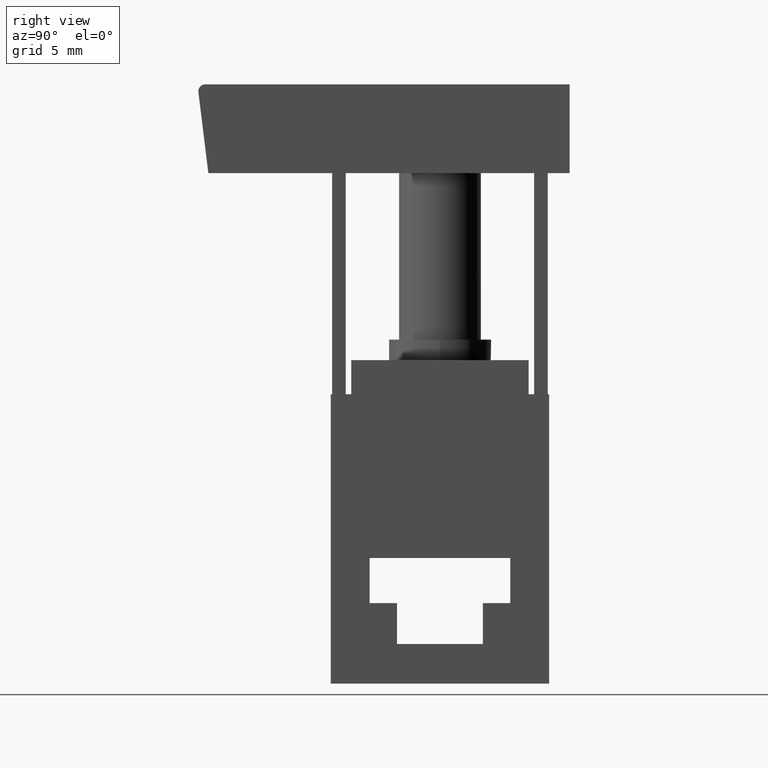
[diagram: clean part render]
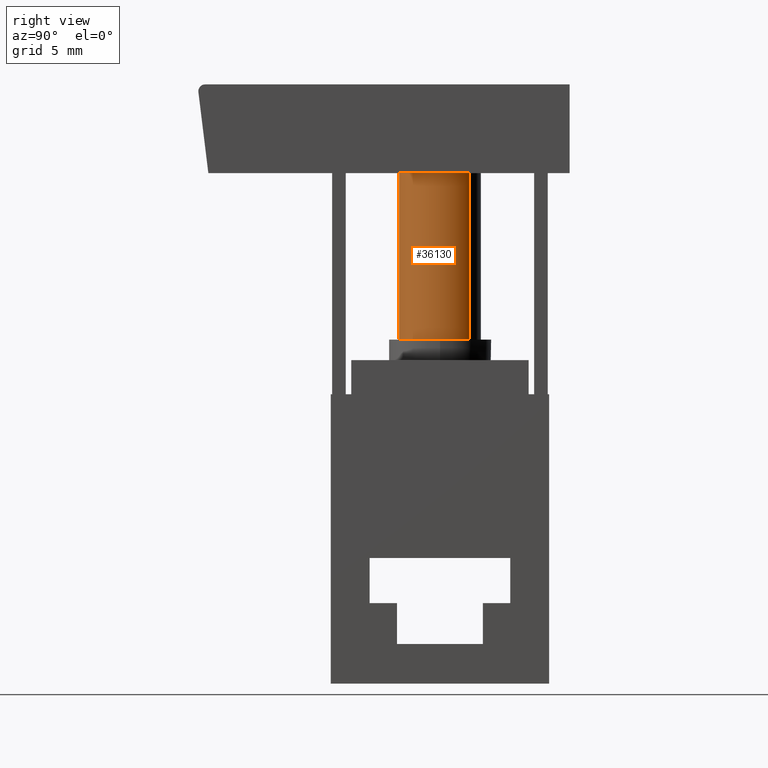
[diagram: same view with one face highlighted and labeled with its STEP entity id]
A machine part, right view. The second image highlights one B-rep face of the part: STEP entity #36130.
In plain terms, the highlighted cylindrical surface (partial cylindrical patch) has radius 3 mm, axis along (0, 0, 1).
Its self-contained STEP definition (entity closure, byte-faithful):
#7040=CARTESIAN_POINT('',(-26.7056108469937,12.2000000000001,
7.99999999999995));
#7050=DIRECTION('',(7.28920975411253E-15,1.,1.03648927375055E-28));
#7060=DIRECTION('',(-0.707106781186553,5.15424964662406E-15,
0.707106781186542));
#7070=AXIS2_PLACEMENT_3D('',#7040,#7050,#7060);
#7080=CIRCLE('',#7070,2.99999999999999);
#7090=CARTESIAN_POINT('',(-28.8269311905533,12.2000000000001,
10.1213203435596));
#7100=VERTEX_POINT('',#7090);
#7110=CARTESIAN_POINT('',(-24.584290503434,12.2000000000001,
5.87867965644033));
#7120=VERTEX_POINT('',#7110);
#7130=EDGE_CURVE('',#7100,#7120,#7080,.T.);
#25650=CARTESIAN_POINT('',(-24.5842905034341,-5.69999999999991,
5.87867965644033));
#25660=DIRECTION('',(7.28920975411253E-15,1.,1.03648927375055E-28));
#25670=VECTOR('',#25660,1.);
#25680=LINE('',#25650,#25670);
#25690=CARTESIAN_POINT('',(-24.584290503434,8.34887714518118E-14,
5.87867965644033));
#25700=VERTEX_POINT('',#25690);
#25710=EDGE_CURVE('',#25700,#7120,#25680,.T.);
#25740=CARTESIAN_POINT('',(-28.8269311905534,-5.69999999999988,
10.1213203435596));
#25750=DIRECTION('',(7.28920975411253E-15,1.,1.03648927375055E-28));
#25760=VECTOR('',#25750,1.);
#25770=LINE('',#25740,#25760);
#25780=CARTESIAN_POINT('',(-28.8269311905534,1.13686837721616E-13,
10.1213203435596));
#25790=VERTEX_POINT('',#25780);
#25800=EDGE_CURVE('',#25790,#7100,#25770,.T.);
#25820=CARTESIAN_POINT('',(-26.7056108469937,9.87395297478266E-14,
7.99999999999995));
#25830=DIRECTION('',(7.28920975411253E-15,1.,1.03648927375055E-28));
#25840=DIRECTION('',(-0.707106781186553,5.15424964662406E-15,
0.707106781186542));
#25850=AXIS2_PLACEMENT_3D('',#25820,#25830,#25840);
#25860=CIRCLE('',#25850,2.99999999999999);
#26040=EDGE_CURVE('',#25790,#25700,#25860,.T.);
#36020=CARTESIAN_POINT('',(-26.7056108469937,-5.6999999999999,
7.99999999999995));
#36030=DIRECTION('',(7.28920975411253E-15,1.,1.03648927375055E-28));
#36040=DIRECTION('',(-0.707106781186553,5.15424964662406E-15,
0.707106781186542));
#36050=AXIS2_PLACEMENT_3D('',#36020,#36030,#36040);
#36060=CYLINDRICAL_SURFACE('',#36050,2.99999999999999);
#36070=ORIENTED_EDGE('',*,*,#7130,.F.);
#36080=ORIENTED_EDGE('',*,*,#25710,.T.);
#36090=ORIENTED_EDGE('',*,*,#26040,.T.);
#36100=ORIENTED_EDGE('',*,*,#25800,.F.);
#36110=EDGE_LOOP('',(#36100,#36090,#36080,#36070));
#36120=FACE_OUTER_BOUND('',#36110,.T.);
#36130=ADVANCED_FACE('',(#36120),#36060,.T.);